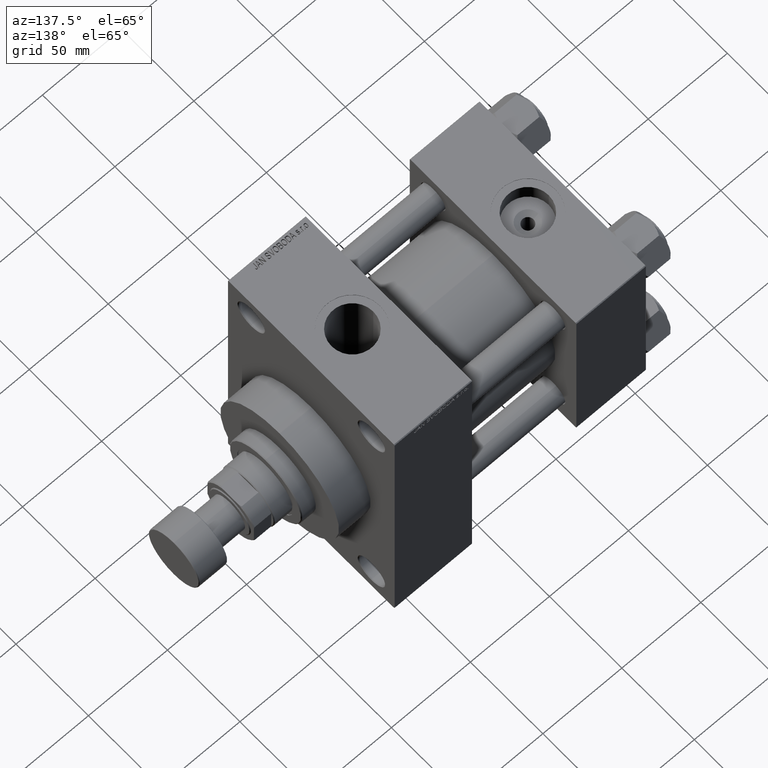
[diagram: clean part render]
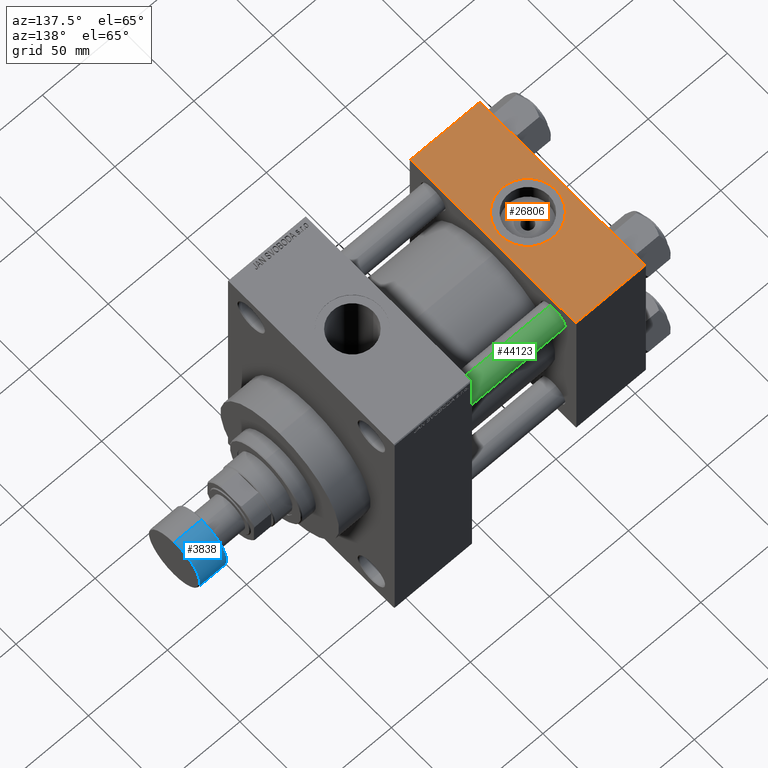
[diagram: same view with three faces highlighted in distinct colors, each labeled with its STEP entity id]
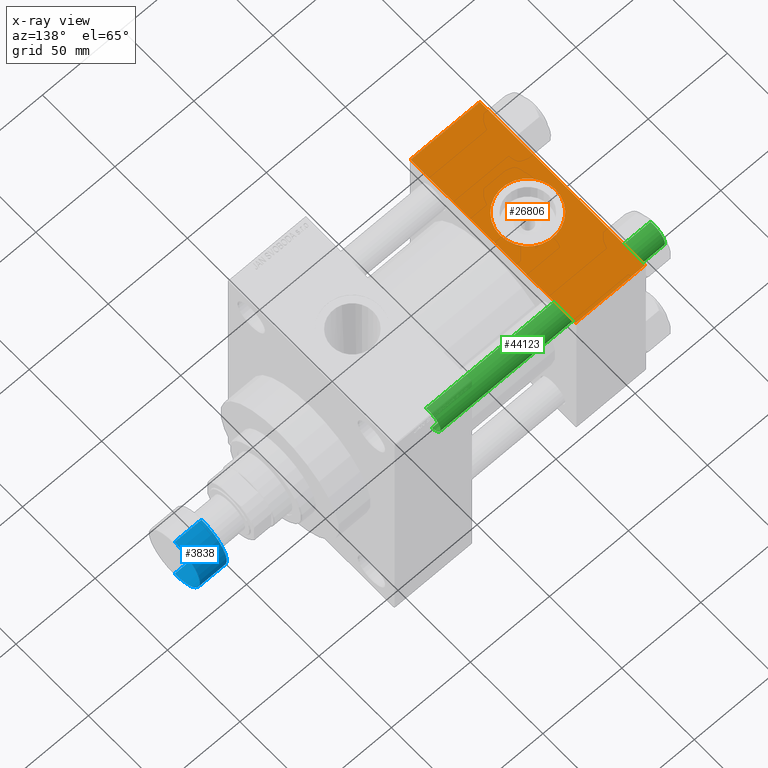
[diagram: x-ray of the same camera — body ghosted, the three highlighted faces saturated]
A machine part, auxiliary view with three faces highlighted in distinct colors.
The next image is the same camera in x-ray (body ghosted, the three faces saturated) — at least one of them is partly hidden behind the body in this view.
Their STEP definitions:

[orange] entity #26806 — the highlighted planar face has unit normal (0, 0, -1).
#908 = VERTEX_POINT ( 'NONE', #41398 ) ;
#4482 = DIRECTION ( 'NONE',  ( 1.000000000000000000, 0.000000000000000000, 0.000000000000000000 ) ) ;
#5527 = LINE ( 'NONE', #27681, #9780 ) ;
#7417 = CARTESIAN_POINT ( 'NONE',  ( 22.00000000000000000, -8.673617379884035472E-15, 57.50000000000000000 ) ) ;
#8301 = VECTOR ( 'NONE', #37625, 1000.000000000000000 ) ;
#8960 = EDGE_LOOP ( 'NONE', ( #36624, #24059 ) ) ;
#9150 = VERTEX_POINT ( 'NONE', #23789 ) ;
#9780 = VECTOR ( 'NONE', #45707, 1000.000000000000000 ) ;
#10221 = ORIENTED_EDGE ( 'NONE', *, *, #42412, .T. ) ;
#11258 = CARTESIAN_POINT ( 'NONE',  ( 4.499999999999997335, -6.530485481376167224E-15, 57.50000000000000000 ) ) ;
#11277 = DIRECTION ( 'NONE',  ( 0.000000000000000000, 1.000000000000000000, 1.206764157201257045E-16 ) ) ;
#11792 = DIRECTION ( 'NONE',  ( 0.000000000000000000, 0.000000000000000000, 1.000000000000000000 ) ) ;
#12383 = ORIENTED_EDGE ( 'NONE', *, *, #27084, .T. ) ;
#15658 = VECTOR ( 'NONE', #23971, 1000.000000000000000 ) ;
#16003 = VERTEX_POINT ( 'NONE', #16498 ) ;
#16392 = CARTESIAN_POINT ( 'NONE',  ( 22.00000000000000000, -8.673617379884035472E-15, 57.50000000000000000 ) ) ;
#16498 = CARTESIAN_POINT ( 'NONE',  ( 44.00000000000000000, 57.00000000000000711, 57.50000000000000711 ) ) ;
#19511 = CIRCLE ( 'NONE', #38171, 17.50000000000000000 ) ;
#20284 = EDGE_LOOP ( 'NONE', ( #45376, #12383, #27232, #10221 ) ) ;
#23117 = VERTEX_POINT ( 'NONE', #11258 ) ;
#23789 = CARTESIAN_POINT ( 'NONE',  ( 44.00000000000000000, -57.00000000000003553, 57.49999999999999289 ) ) ;
#23971 = DIRECTION ( 'NONE',  ( 0.000000000000000000, -1.000000000000000000, -1.206764157201257045E-16 ) ) ;
#24059 = ORIENTED_EDGE ( 'NONE', *, *, #43128, .F. ) ;
#25553 = DIRECTION ( 'NONE',  ( -1.000000000000000000, 0.000000000000000000, 0.000000000000000000 ) ) ;
#25733 = CIRCLE ( 'NONE', #37369, 17.50000000000000000 ) ;
#26806 = ADVANCED_FACE ( 'NONE', ( #33899, #47787 ), #29783, .F. ) ;
#27084 = EDGE_CURVE ( 'NONE', #33135, #9150, #5527, .T. ) ;
#27232 = ORIENTED_EDGE ( 'NONE', *, *, #30315, .F. ) ;
#27681 = CARTESIAN_POINT ( 'NONE',  ( 44.00000000000000000, -57.00000000000003553, 57.49999999999999289 ) ) ;
#29122 = CARTESIAN_POINT ( 'NONE',  ( 44.00000000000000000, 57.49999999999999289, 57.50000000000000711 ) ) ;
#29196 = CARTESIAN_POINT ( 'NONE',  ( 0.000000000000000000, 57.00000000000000711, 57.50000000000000711 ) ) ;
#29605 = LINE ( 'NONE', #29122, #8301 ) ;
#29783 = PLANE ( 'NONE',  #38517 ) ;
#30187 = CARTESIAN_POINT ( 'NONE',  ( 0.000000000000000000, -57.00000000000003553, 57.49999999999999289 ) ) ;
#30315 = EDGE_CURVE ( 'NONE', #16003, #9150, #29605, .T. ) ;
#31285 = LINE ( 'NONE', #45900, #15658 ) ;
#33135 = VERTEX_POINT ( 'NONE', #30187 ) ;
#33899 = FACE_BOUND ( 'NONE', #8960, .T. ) ;
#34407 = DIRECTION ( 'NONE',  ( 1.000000000000000000, 0.000000000000000000, 0.000000000000000000 ) ) ;
#36624 = ORIENTED_EDGE ( 'NONE', *, *, #47236, .F. ) ;
#37369 = AXIS2_PLACEMENT_3D ( 'NONE', #7417, #11792, #4482 ) ;
#37625 = DIRECTION ( 'NONE',  ( 0.000000000000000000, -1.000000000000000000, -1.206764157201257045E-16 ) ) ;
#38171 = AXIS2_PLACEMENT_3D ( 'NONE', #16392, #45364, #34407 ) ;
#38517 = AXIS2_PLACEMENT_3D ( 'NONE', #40243, #44626, #11277 ) ;
#40243 = CARTESIAN_POINT ( 'NONE',  ( 44.00000000000000000, 57.49999999999999289, 57.50000000000000711 ) ) ;
#41398 = CARTESIAN_POINT ( 'NONE',  ( 39.50000000000000000, -8.673617379884035472E-15, 57.50000000000000000 ) ) ;
#42385 = VERTEX_POINT ( 'NONE', #29196 ) ;
#42412 = EDGE_CURVE ( 'NONE', #16003, #42385, #44293, .T. ) ;
#43128 = EDGE_CURVE ( 'NONE', #23117, #908, #25733, .T. ) ;
#44293 = LINE ( 'NONE', #44538, #45925 ) ;
#44538 = CARTESIAN_POINT ( 'NONE',  ( 0.000000000000000000, 57.00000000000000711, 57.50000000000000711 ) ) ;
#44626 = DIRECTION ( 'NONE',  ( 0.000000000000000000, 1.206764157201257045E-16, -1.000000000000000000 ) ) ;
#45364 = DIRECTION ( 'NONE',  ( 0.000000000000000000, 0.000000000000000000, 1.000000000000000000 ) ) ;
#45376 = ORIENTED_EDGE ( 'NONE', *, *, #46874, .T. ) ;
#45707 = DIRECTION ( 'NONE',  ( 1.000000000000000000, 0.000000000000000000, 0.000000000000000000 ) ) ;
#45900 = CARTESIAN_POINT ( 'NONE',  ( 0.000000000000000000, 57.49999999999999289, 57.50000000000000711 ) ) ;
#45925 = VECTOR ( 'NONE', #25553, 1000.000000000000000 ) ;
#46874 = EDGE_CURVE ( 'NONE', #42385, #33135, #31285, .T. ) ;
#47236 = EDGE_CURVE ( 'NONE', #908, #23117, #19511, .T. ) ;
#47787 = FACE_OUTER_BOUND ( 'NONE', #20284, .T. ) ;

[blue] entity #3838 — the highlighted cylindrical surface (partial cylindrical patch) has radius 17.5 mm, axis along (1, 0, 0).
#1704 = DIRECTION ( 'NONE',  ( 0.000000000000000000, 0.000000000000000000, 1.000000000000000000 ) ) ;
#3046 = ORIENTED_EDGE ( 'NONE', *, *, #20158, .T. ) ;
#3344 = EDGE_LOOP ( 'NONE', ( #20247, #5601, #3046, #4910 ) ) ;
#3838 = ADVANCED_FACE ( 'NONE', ( #25908 ), #29303, .T. ) ;
#4910 = ORIENTED_EDGE ( 'NONE', *, *, #34179, .F. ) ;
#5297 = AXIS2_PLACEMENT_3D ( 'NONE', #34540, #27941, #24055 ) ;
#5601 = ORIENTED_EDGE ( 'NONE', *, *, #14052, .T. ) ;
#6808 = VERTEX_POINT ( 'NONE', #46894 ) ;
#7445 = DIRECTION ( 'NONE',  ( 1.000000000000000000, 0.000000000000000000, 0.000000000000000000 ) ) ;
#11731 = DIRECTION ( 'NONE',  ( 0.000000000000000000, 0.000000000000000000, 1.000000000000000000 ) ) ;
#14052 = EDGE_CURVE ( 'NONE', #42870, #6808, #40699, .T. ) ;
#14409 = CARTESIAN_POINT ( 'NONE',  ( -17.50000000000000355, 2.143131898507868643E-15, -18.00000000000000000 ) ) ;
#14989 = DIRECTION ( 'NONE',  ( -0.000000000000000000, -0.000000000000000000, -1.000000000000000000 ) ) ;
#18086 = VERTEX_POINT ( 'NONE', #23343 ) ;
#18905 = AXIS2_PLACEMENT_3D ( 'NONE', #29590, #14989, #7445 ) ;
#20158 = EDGE_CURVE ( 'NONE', #6808, #38069, #32097, .T. ) ;
#20247 = ORIENTED_EDGE ( 'NONE', *, *, #36090, .T. ) ;
#22340 = VECTOR ( 'NONE', #1704, 1000.000000000000000 ) ;
#23343 = CARTESIAN_POINT ( 'NONE',  ( 17.50000000000000355, 0.000000000000000000, -17.49999999999999645 ) ) ;
#23905 = AXIS2_PLACEMENT_3D ( 'NONE', #40256, #44152, #33915 ) ;
#24055 = DIRECTION ( 'NONE',  ( 1.000000000000000000, 0.000000000000000000, 0.000000000000000000 ) ) ;
#25908 = FACE_OUTER_BOUND ( 'NONE', #3344, .T. ) ;
#27941 = DIRECTION ( 'NONE',  ( 0.000000000000000000, 0.000000000000000000, 1.000000000000000000 ) ) ;
#27962 = CARTESIAN_POINT ( 'NONE',  ( 17.50000000000000355, 0.000000000000000000, -0.5000000000000004441 ) ) ;
#29303 = CYLINDRICAL_SURFACE ( 'NONE', #23905, 17.50000000000000355 ) ;
#29590 = CARTESIAN_POINT ( 'NONE',  ( 0.000000000000000000, 0.000000000000000000, -0.5000000000000004441 ) ) ;
#31692 = CIRCLE ( 'NONE', #5297, 17.50000000000000355 ) ;
#32006 = CARTESIAN_POINT ( 'NONE',  ( -17.50000000000000355, 2.143131898507868643E-15, -17.49999999999999645 ) ) ;
#32097 = CIRCLE ( 'NONE', #18905, 17.50000000000000355 ) ;
#33915 = DIRECTION ( 'NONE',  ( 1.000000000000000000, 0.000000000000000000, 0.000000000000000000 ) ) ;
#34179 = EDGE_CURVE ( 'NONE', #18086, #38069, #46014, .T. ) ;
#34540 = CARTESIAN_POINT ( 'NONE',  ( 0.000000000000000000, 0.000000000000000000, -17.49999999999999645 ) ) ;
#36090 = EDGE_CURVE ( 'NONE', #18086, #42870, #31692, .T. ) ;
#38069 = VERTEX_POINT ( 'NONE', #27962 ) ;
#40256 = CARTESIAN_POINT ( 'NONE',  ( 0.000000000000000000, 0.000000000000000000, -18.00000000000000000 ) ) ;
#40699 = LINE ( 'NONE', #14409, #42887 ) ;
#42870 = VERTEX_POINT ( 'NONE', #32006 ) ;
#42887 = VECTOR ( 'NONE', #11731, 1000.000000000000000 ) ;
#44152 = DIRECTION ( 'NONE',  ( 0.000000000000000000, 0.000000000000000000, 1.000000000000000000 ) ) ;
#46014 = LINE ( 'NONE', #46244, #22340 ) ;
#46244 = CARTESIAN_POINT ( 'NONE',  ( 17.50000000000000355, 0.000000000000000000, -18.00000000000000000 ) ) ;
#46894 = CARTESIAN_POINT ( 'NONE',  ( -17.50000000000000355, 2.143131898507868643E-15, -0.5000000000000004441 ) ) ;

[green] entity #44123 — the highlighted cylindrical surface (edge-blend (fillet) strip) has radius 8 mm, axis along (-1, -0, 0).
#87 = VECTOR ( 'NONE', #44814, 1000.000000000000000 ) ;
#436 = CARTESIAN_POINT ( 'NONE',  ( 0.000000000000000000, 0.000000000000000000, 143.0000000000000000 ) ) ;
#3239 = EDGE_CURVE ( 'NONE', #25023, #17365, #28456, .T. ) ;
#3929 = LINE ( 'NONE', #30203, #87 ) ;
#3938 = CARTESIAN_POINT ( 'NONE',  ( 0.000000000000000000, 0.000000000000000000, 142.4999999999999716 ) ) ;
#4147 = DIRECTION ( 'NONE',  ( -0.000000000000000000, -0.000000000000000000, 1.000000000000000000 ) ) ;
#8186 = VERTEX_POINT ( 'NONE', #33546 ) ;
#8309 = DIRECTION ( 'NONE',  ( 0.000000000000000000, 0.000000000000000000, -1.000000000000000000 ) ) ;
#8753 = CARTESIAN_POINT ( 'NONE',  ( 8.000000000000000000, 9.797174393178825657E-16, 142.4999999999999716 ) ) ;
#10830 = EDGE_LOOP ( 'NONE', ( #15615, #24493, #40763, #28437 ) ) ;
#11152 = FACE_OUTER_BOUND ( 'NONE', #10830, .T. ) ;
#14793 = DIRECTION ( 'NONE',  ( -1.000000000000000000, 0.000000000000000000, 0.000000000000000000 ) ) ;
#15281 = DIRECTION ( 'NONE',  ( -0.000000000000000000, -0.000000000000000000, -1.000000000000000000 ) ) ;
#15615 = ORIENTED_EDGE ( 'NONE', *, *, #17035, .T. ) ;
#17035 = EDGE_CURVE ( 'NONE', #41482, #25023, #40547, .T. ) ;
#17365 = VERTEX_POINT ( 'NONE', #41116 ) ;
#19565 = AXIS2_PLACEMENT_3D ( 'NONE', #3938, #8309, #37996 ) ;
#24493 = ORIENTED_EDGE ( 'NONE', *, *, #3239, .T. ) ;
#25023 = VERTEX_POINT ( 'NONE', #8753 ) ;
#25296 = CARTESIAN_POINT ( 'NONE',  ( 8.000000000000000000, 9.797174393178825657E-16, 143.0000000000000000 ) ) ;
#26715 = CYLINDRICAL_SURFACE ( 'NONE', #38957, 8.000000000000000000 ) ;
#27013 = DIRECTION ( 'NONE',  ( 1.000000000000000000, 0.000000000000000000, 0.000000000000000000 ) ) ;
#28437 = ORIENTED_EDGE ( 'NONE', *, *, #46627, .F. ) ;
#28456 = LINE ( 'NONE', #25296, #44099 ) ;
#30203 = CARTESIAN_POINT ( 'NONE',  ( -8.000000000000000000, 0.000000000000000000, 143.0000000000000000 ) ) ;
#30899 = CARTESIAN_POINT ( 'NONE',  ( 0.000000000000000000, 0.000000000000000000, 0.4999999999999726885 ) ) ;
#33546 = CARTESIAN_POINT ( 'NONE',  ( -8.000000000000000000, 0.000000000000000000, 0.4999999999999726885 ) ) ;
#37996 = DIRECTION ( 'NONE',  ( 1.000000000000000000, 0.000000000000000000, 0.000000000000000000 ) ) ;
#38957 = AXIS2_PLACEMENT_3D ( 'NONE', #436, #15281, #14793 ) ;
#40132 = DIRECTION ( 'NONE',  ( -0.000000000000000000, -0.000000000000000000, -1.000000000000000000 ) ) ;
#40432 = EDGE_CURVE ( 'NONE', #17365, #8186, #42748, .T. ) ;
#40547 = CIRCLE ( 'NONE', #19565, 8.000000000000000000 ) ;
#40763 = ORIENTED_EDGE ( 'NONE', *, *, #40432, .T. ) ;
#41116 = CARTESIAN_POINT ( 'NONE',  ( 8.000000000000000000, 9.797174393178825657E-16, 0.4999999999999726885 ) ) ;
#41482 = VERTEX_POINT ( 'NONE', #44285 ) ;
#42748 = CIRCLE ( 'NONE', #45083, 8.000000000000000000 ) ;
#44099 = VECTOR ( 'NONE', #40132, 1000.000000000000000 ) ;
#44123 = ADVANCED_FACE ( 'NONE', ( #11152 ), #26715, .T. ) ;
#44285 = CARTESIAN_POINT ( 'NONE',  ( -8.000000000000000000, 0.000000000000000000, 142.4999999999999716 ) ) ;
#44814 = DIRECTION ( 'NONE',  ( -0.000000000000000000, -0.000000000000000000, -1.000000000000000000 ) ) ;
#45083 = AXIS2_PLACEMENT_3D ( 'NONE', #30899, #4147, #27013 ) ;
#46627 = EDGE_CURVE ( 'NONE', #41482, #8186, #3929, .T. ) ;